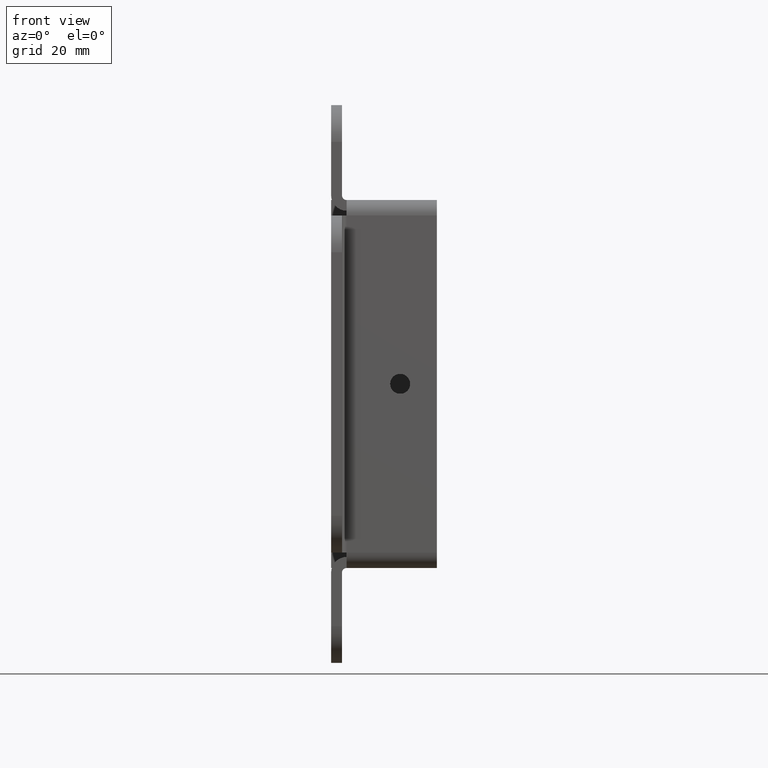
[diagram: clean part render]
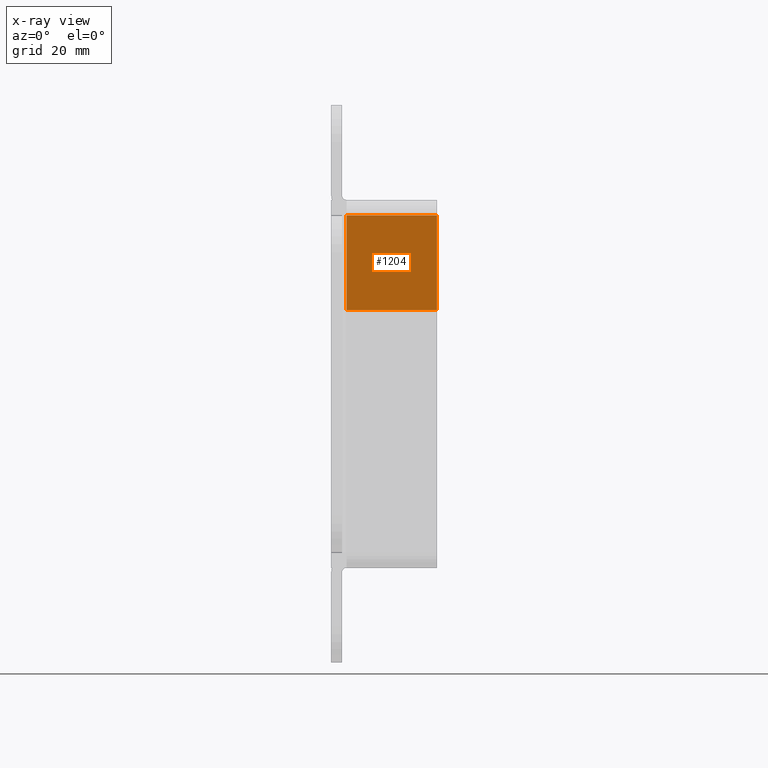
[diagram: x-ray — body ghosted, one internal face saturated and labeled with its STEP entity id]
A machine part, front view, then the same camera in x-ray: the body is ghosted and one INTERNAL B-rep face — a face not visible from any outside direction — is saturated and labeled: STEP entity #1204.
In plain terms, the highlighted planar face has unit normal (0, 1, -0).
Its self-contained STEP definition (entity closure, byte-faithful):
#118=FACE_OUTER_BOUND('',#194,.T.);
#194=EDGE_LOOP('',(#767,#768,#769,#770));
#293=LINE('',#1797,#403);
#296=LINE('',#1803,#406);
#297=LINE('',#1805,#407);
#298=LINE('',#1806,#408);
#403=VECTOR('',#1424,0.6135);
#406=VECTOR('',#1429,0.644749999999999);
#407=VECTOR('',#1430,0.6135);
#408=VECTOR('',#1431,0.64475);
#512=VERTEX_POINT('',#1794);
#513=VERTEX_POINT('',#1796);
#515=VERTEX_POINT('',#1802);
#516=VERTEX_POINT('',#1804);
#605=EDGE_CURVE('',#512,#513,#293,.T.);
#608=EDGE_CURVE('',#512,#515,#296,.T.);
#609=EDGE_CURVE('',#515,#516,#297,.T.);
#610=EDGE_CURVE('',#513,#516,#298,.T.);
#767=ORIENTED_EDGE('',*,*,#608,.T.);
#768=ORIENTED_EDGE('',*,*,#609,.T.);
#769=ORIENTED_EDGE('',*,*,#610,.F.);
#770=ORIENTED_EDGE('',*,*,#605,.F.);
#1074=PLANE('',#1283);
#1204=ADVANCED_FACE('',(#118),#1074,.T.);
#1283=AXIS2_PLACEMENT_3D('',#1801,#1427,#1428);
#1424=DIRECTION('',(1.,0.,0.));
#1427=DIRECTION('center_axis',(1.13921882087106E-19,1.,-1.71719615558728E-15));
#1428=DIRECTION('ref_axis',(1.,0.,0.));
#1429=DIRECTION('',(6.77930483111722E-17,1.71719615558728E-15,1.));
#1430=DIRECTION('',(1.,-1.13921882087106E-19,1.95390210990238E-34));
#1431=DIRECTION('',(0.,1.77635683940025E-15,1.));
#1794=CARTESIAN_POINT('',(-0.291125,1.21299999999999,-0.676));
#1796=CARTESIAN_POINT('',(0.322375,1.213,-0.676));
#1797=CARTESIAN_POINT('',(-0.322375,1.213,-0.676));
#1801=CARTESIAN_POINT('Origin',(0.,1.213,-0.317283056183274));
#1802=CARTESIAN_POINT('',(-0.291125,1.213,-0.0312500000000003));
#1803=CARTESIAN_POINT('',(-0.291125,1.213,-0.496641528091637));
#1804=CARTESIAN_POINT('',(0.322375,1.213,-0.0312500000000003));
#1805=CARTESIAN_POINT('',(3.35944238086666E-21,1.213,-0.0312500000000003));
#1806=CARTESIAN_POINT('',(0.322375,1.213,0.114117775266907));